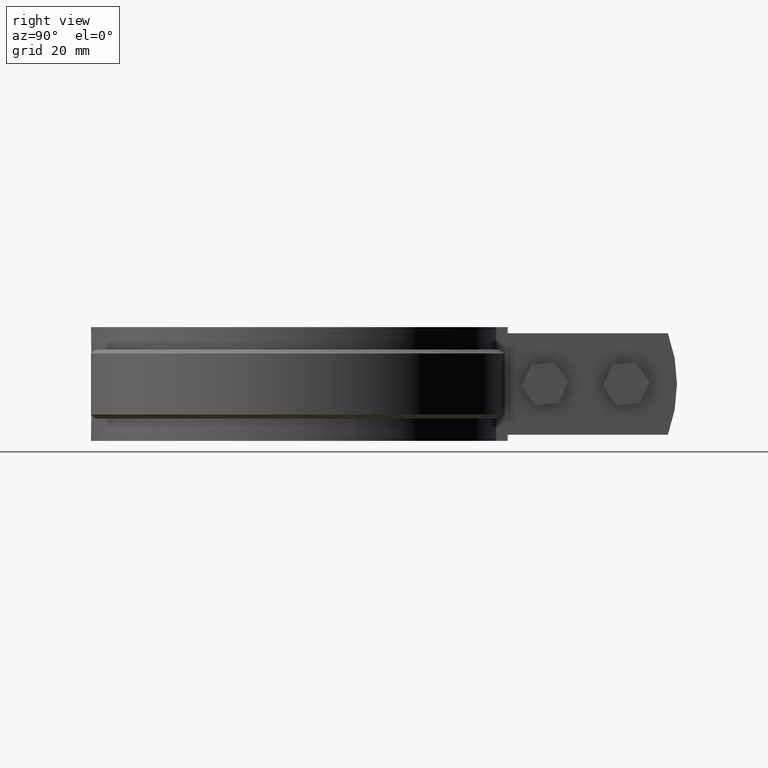
[diagram: clean part render]
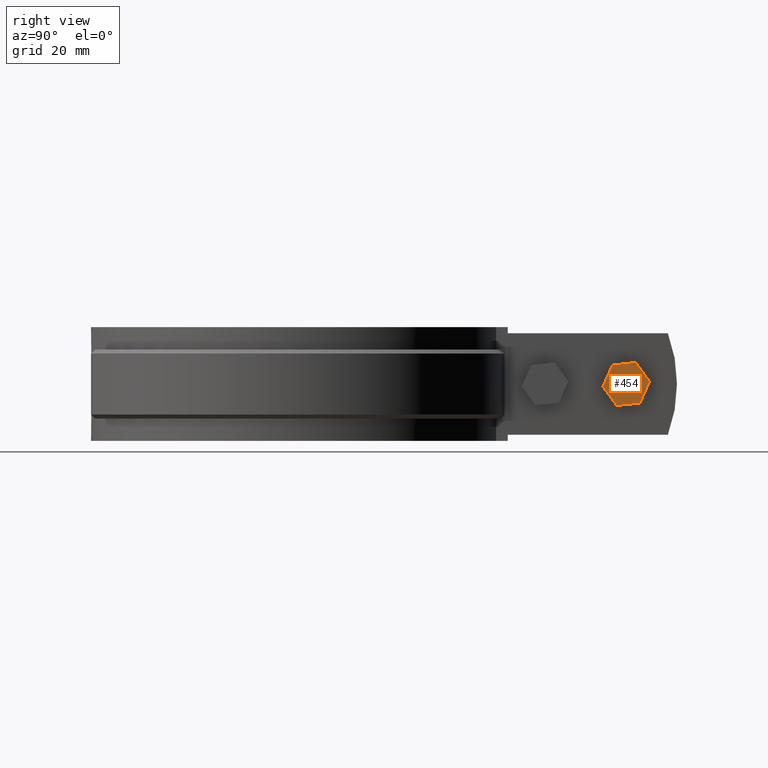
[diagram: same view with one face highlighted and labeled with its STEP entity id]
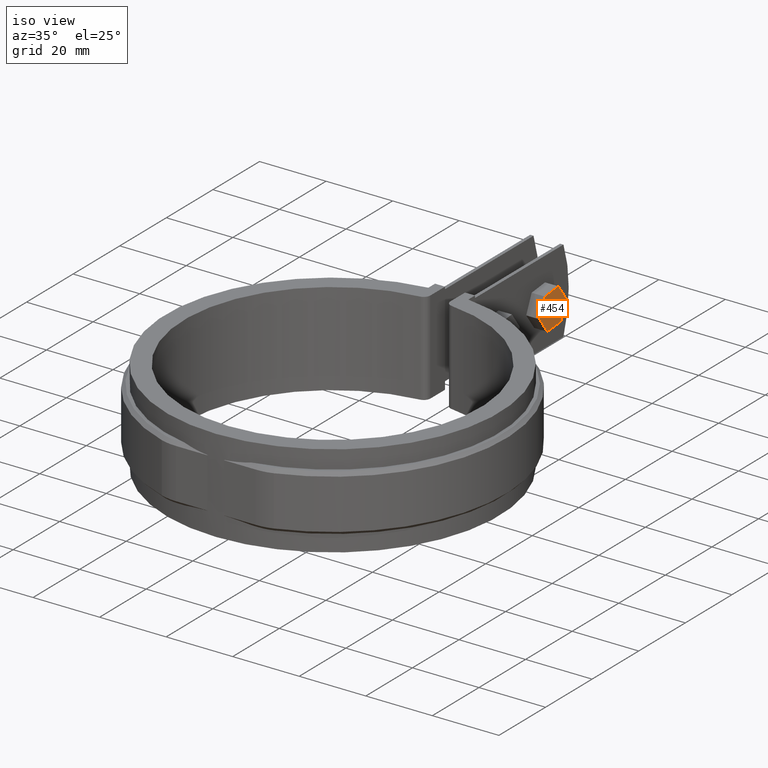
[diagram: same view with one face highlighted and labeled with its STEP entity id]
A machine part, right view. The second image highlights one B-rep face of the part: STEP entity #454.
A second angle (iso view) of the same face is appended — the face is thin or edge-on in the first view.
In plain terms, the highlighted planar face has unit normal (-1, 0, -0).
Its self-contained STEP definition (entity closure, byte-faithful):
#454 = ADVANCED_FACE( '', ( #808 ), #809, .F. );
#808 = FACE_OUTER_BOUND( '', #1784, .T. );
#809 = PLANE( '', #1785 );
#1784 = EDGE_LOOP( '', ( #3627, #3628, #3629, #3630, #3631, #3632 ) );
#1785 = AXIS2_PLACEMENT_3D( '', #3633, #3634, #3635 );
#3627 = ORIENTED_EDGE( '', *, *, #4387, .T. );
#3628 = ORIENTED_EDGE( '', *, *, #4390, .T. );
#3629 = ORIENTED_EDGE( '', *, *, #4393, .T. );
#3630 = ORIENTED_EDGE( '', *, *, #4394, .T. );
#3631 = ORIENTED_EDGE( '', *, *, #4395, .T. );
#3632 = ORIENTED_EDGE( '', *, *, #4396, .T. );
#3633 = CARTESIAN_POINT( '', ( 8.99999999999651, 73.6155474684751, -5.89067183010097 ) );
#3634 = DIRECTION( '', ( -1.00000000000000, 2.67281476511328E-017, -1.20245887291257E-017 ) );
#3635 = DIRECTION( '', ( -1.47927020841174E-017, -0.106105113205070, 0.994354919006156 ) );
#4387 = EDGE_CURVE( '', #5138, #5136, #5139, .T. );
#4390 = EDGE_CURVE( '', #5136, #5141, #5143, .T. );
#4393 = EDGE_CURVE( '', #5141, #5148, #5149, .T. );
#4394 = EDGE_CURVE( '', #5148, #5150, #5151, .T. );
#4395 = EDGE_CURVE( '', #5150, #5152, #5153, .T. );
#4396 = EDGE_CURVE( '', #5152, #5138, #5154, .T. );
#5136 = VERTEX_POINT( '', #7868 );
#5138 = VERTEX_POINT( '', #7871 );
#5139 = LINE( '', #7872, #7873 );
#5141 = VERTEX_POINT( '', #7876 );
#5143 = LINE( '', #7879, #7880 );
#5148 = VERTEX_POINT( '', #7885 );
#5149 = LINE( '', #7886, #7887 );
#5150 = VERTEX_POINT( '', #7888 );
#5151 = LINE( '', #7889, #7890 );
#5152 = VERTEX_POINT( '', #7891 );
#5153 = LINE( '', #7892, #7893 );
#5154 = LINE( '', #7894, #7895 );
#7868 = CARTESIAN_POINT( '', ( 8.99999999999651, 85.0973690716397, -4.66547551667411 ) );
#7871 = CARTESIAN_POINT( '', ( 8.99999999999651, 79.3564582700574, -5.27807367338754 ) );
#7872 = CARTESIAN_POINT( '', ( 8.99999999999651, 79.3564582700574, -5.27807367338754 ) );
#7873 = VECTOR( '', #8703, 1000.00000000000 );
#7876 = CARTESIAN_POINT( '', ( 8.99999999999651, 87.4372989064056, 0.612598156713388 ) );
#7879 = CARTESIAN_POINT( '', ( 8.99999999999651, 85.0973690716397, -4.66547551667411 ) );
#7880 = VECTOR( '', #8706, 1000.00000000000 );
#7885 = CARTESIAN_POINT( '', ( 8.99999999999651, 84.0363179395890, 5.27807367338745 ) );
#7886 = CARTESIAN_POINT( '', ( 8.99999999999651, 87.4372989064056, 0.612598156713388 ) );
#7887 = VECTOR( '', #8713, 1000.00000000000 );
#7888 = CARTESIAN_POINT( '', ( 8.99999999999651, 78.2954071380067, 4.66547551667402 ) );
#7889 = CARTESIAN_POINT( '', ( 8.99999999999651, 84.0363179395890, 5.27807367338745 ) );
#7890 = VECTOR( '', #8714, 1000.00000000000 );
#7891 = CARTESIAN_POINT( '', ( 8.99999999999651, 75.9554773032409, -0.612598156713475 ) );
#7892 = CARTESIAN_POINT( '', ( 8.99999999999651, 78.2954071380067, 4.66547551667402 ) );
#7893 = VECTOR( '', #8715, 1000.00000000000 );
#7894 = CARTESIAN_POINT( '', ( 8.99999999999651, 75.9554773032409, -0.612598156713474 ) );
#7895 = VECTOR( '', #8716, 1000.00000000000 );
#8703 = DIRECTION( '', ( 2.53013947444784E-017, 0.994354919006156, 0.106105113205070 ) );
#8706 = DIRECTION( '', ( -1.60158423221502E-019, 0.405287735996063, 0.914189176839884 ) );
#8713 = DIRECTION( '', ( -2.54615531676999E-017, -0.589067183010093, 0.808084063634814 ) );
#8714 = DIRECTION( '', ( -2.53013947444784E-017, -0.994354919006156, -0.106105113205070 ) );
#8715 = DIRECTION( '', ( 1.60158423221502E-019, -0.405287735996063, -0.914189176839884 ) );
#8716 = DIRECTION( '', ( 2.54615531676999E-017, 0.589067183010093, -0.808084063634814 ) );